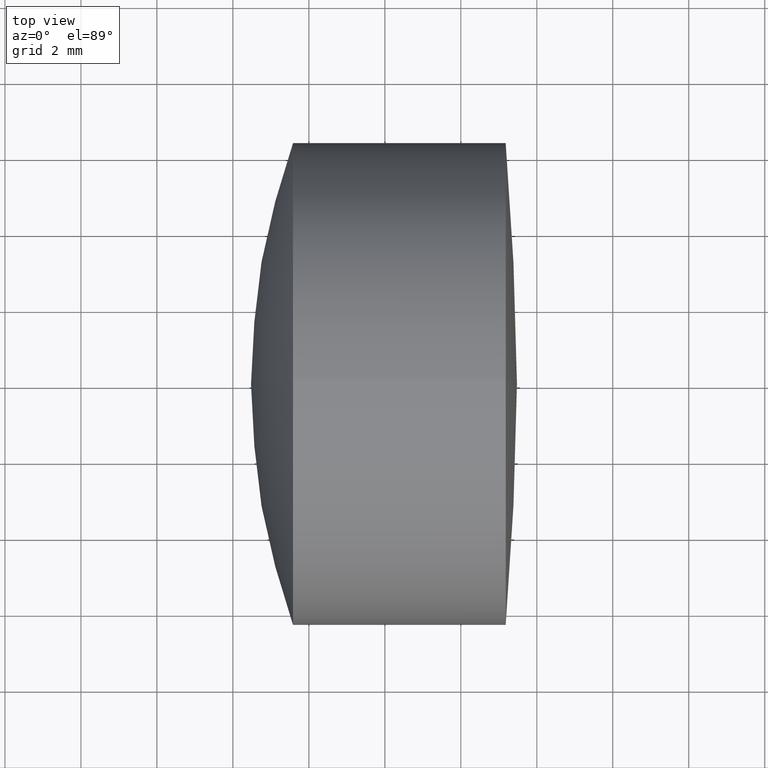
[diagram: clean part render]
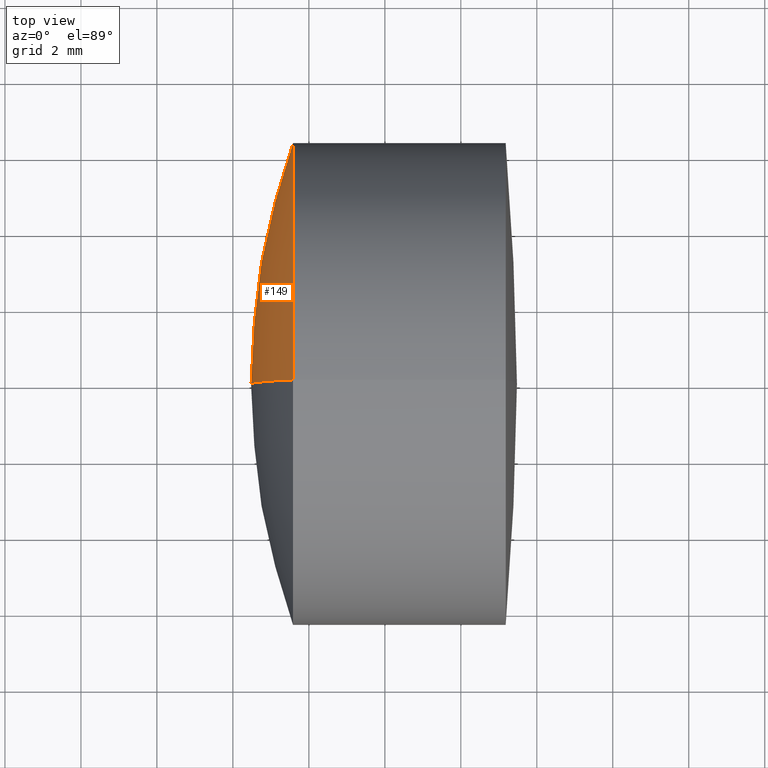
[diagram: same view with one face highlighted and labeled with its STEP entity id]
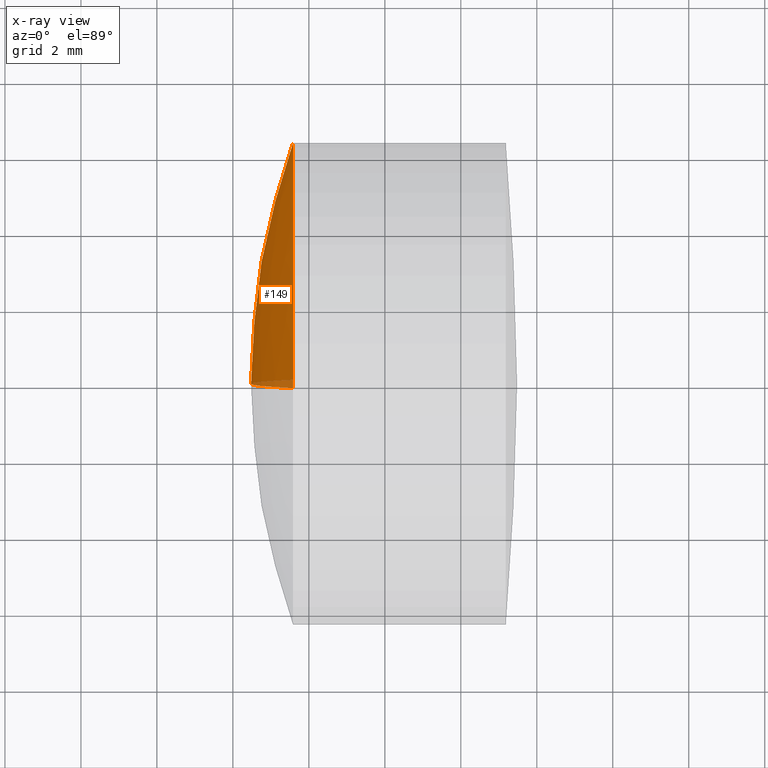
[diagram: x-ray of the same camera — body ghosted, the highlighted face saturated]
A machine part, top view. The second image highlights one B-rep face of the part: STEP entity #149.
The next image is the same camera in x-ray: the body ghosted, the highlighted face saturated — about 3% of this face is hidden behind the body in this view.
In plain terms, the highlighted spherical surface has radius 18.8 mm.
Its self-contained STEP definition (entity closure, byte-faithful):
#6 = CARTESIAN_POINT ( 'NONE',  ( -2.417297294726642200, -7.776507174585684300E-016, 6.349999999999992500 ) ) ;
#28 = DIRECTION ( 'NONE',  ( -1.000000000000000000, -0.0000000000000000000, -0.0000000000000000000 ) ) ;
#31 = CARTESIAN_POINT ( 'NONE',  ( 15.27782915297076400, 0.0000000000000000000, 4.145716693181975100E-017 ) ) ;
#44 = VERTEX_POINT ( 'NONE', #266 ) ;
#51 = ORIENTED_EDGE ( 'NONE', *, *, #178, .T. ) ;
#52 = CIRCLE ( 'NONE', #168, 6.349999999999999600 ) ;
#72 = AXIS2_PLACEMENT_3D ( 'NONE', #321, #116, #152 ) ;
#79 = AXIS2_PLACEMENT_3D ( 'NONE', #31, #88, #275 ) ;
#88 = DIRECTION ( 'NONE',  ( 0.0000000000000000000, -1.000000000000000000, -1.224646799147353200E-016 ) ) ;
#99 = AXIS2_PLACEMENT_3D ( 'NONE', #204, #103, #318 ) ;
#103 = DIRECTION ( 'NONE',  ( -0.0000000000000000000, -1.000000000000000000, -0.0000000000000000000 ) ) ;
#114 = CIRCLE ( 'NONE', #79, 18.80000000000000100 ) ;
#116 = DIRECTION ( 'NONE',  ( 0.0000000000000000000, 1.000000000000000000, -0.0000000000000000000 ) ) ;
#149 = ADVANCED_FACE ( 'NONE', ( #238 ), #193, .T. ) ;
#151 = EDGE_CURVE ( 'NONE', #189, #44, #114, .T. ) ;
#152 = DIRECTION ( 'NONE',  ( 0.0000000000000000000, 0.0000000000000000000, 1.000000000000000000 ) ) ;
#168 = AXIS2_PLACEMENT_3D ( 'NONE', #264, #28, #174 ) ;
#174 = DIRECTION ( 'NONE',  ( 0.0000000000000000000, 0.0000000000000000000, 1.000000000000000000 ) ) ;
#178 = EDGE_CURVE ( 'NONE', #189, #232, #52, .T. ) ;
#189 = VERTEX_POINT ( 'NONE', #6 ) ;
#193 = SPHERICAL_SURFACE ( 'NONE', #99, 18.80000000000000100 ) ;
#204 = CARTESIAN_POINT ( 'NONE',  ( 15.27782915297076400, 0.0000000000000000000, 4.145716693181975100E-017 ) ) ;
#205 = ORIENTED_EDGE ( 'NONE', *, *, #289, .T. ) ;
#222 = CARTESIAN_POINT ( 'NONE',  ( -2.417297294726642200, 0.0000000000000000000, -6.349999999999992500 ) ) ;
#232 = VERTEX_POINT ( 'NONE', #222 ) ;
#238 = FACE_OUTER_BOUND ( 'NONE', #246, .T. ) ;
#246 = EDGE_LOOP ( 'NONE', ( #254, #51, #205 ) ) ;
#254 = ORIENTED_EDGE ( 'NONE', *, *, #151, .F. ) ;
#264 = CARTESIAN_POINT ( 'NONE',  ( -2.417297294726639600, 0.0000000000000000000, 0.0000000000000000000 ) ) ;
#266 = CARTESIAN_POINT ( 'NONE',  ( -3.522170847029236600, 0.0000000000000000000, -1.109710824266692100E-015 ) ) ;
#275 = DIRECTION ( 'NONE',  ( 0.0000000000000000000, 1.224646799147353000E-016, -1.000000000000000000 ) ) ;
#289 = EDGE_CURVE ( 'NONE', #232, #44, #335, .T. ) ;
#318 = DIRECTION ( 'NONE',  ( 0.0000000000000000000, 0.0000000000000000000, -1.000000000000000000 ) ) ;
#321 = CARTESIAN_POINT ( 'NONE',  ( 15.27782915297076400, 0.0000000000000000000, 4.145716693181975100E-017 ) ) ;
#335 = CIRCLE ( 'NONE', #72, 18.80000000000000100 ) ;